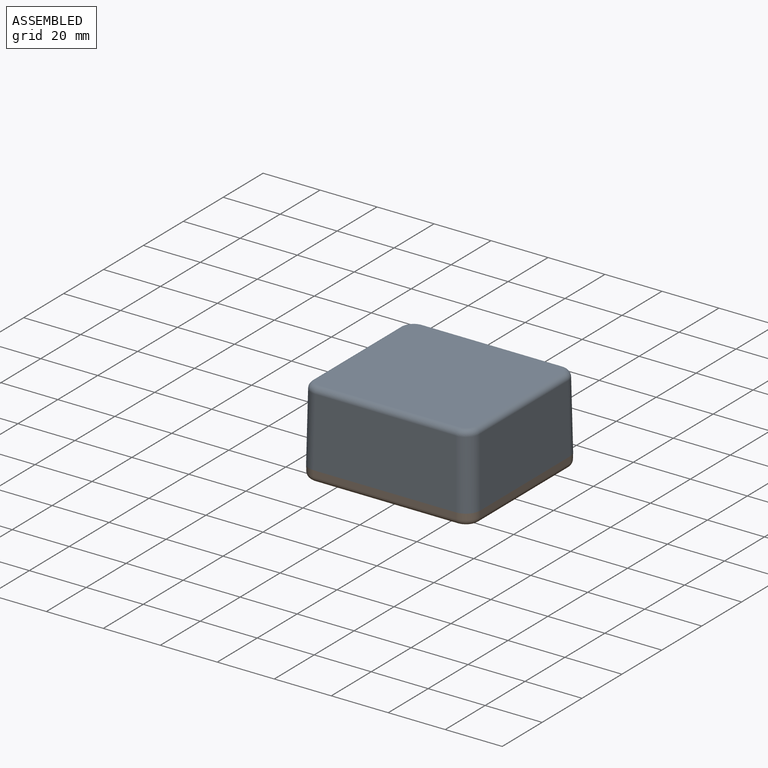
[diagram: assembled view]
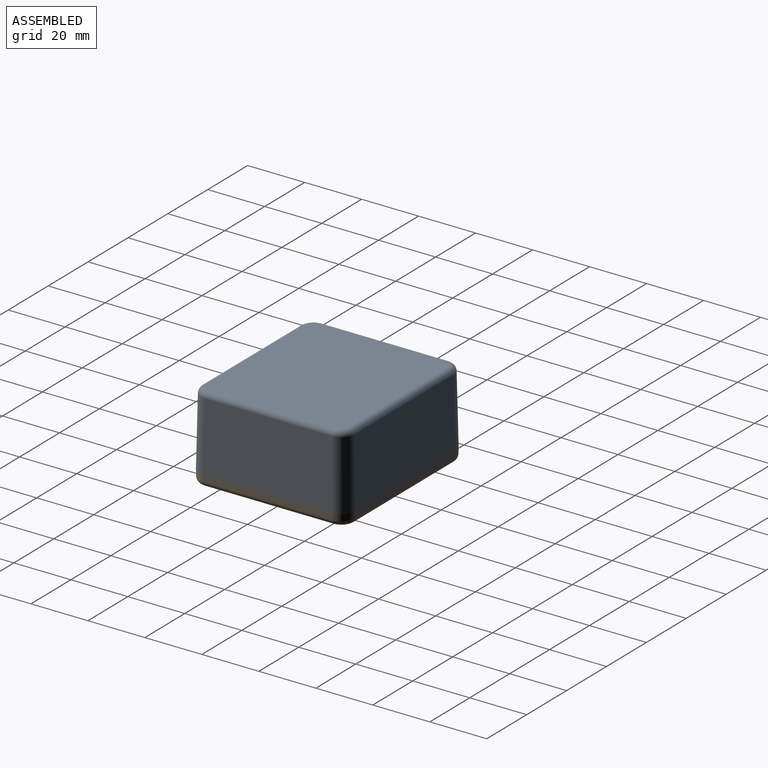
[diagram: assembled view, second angle]
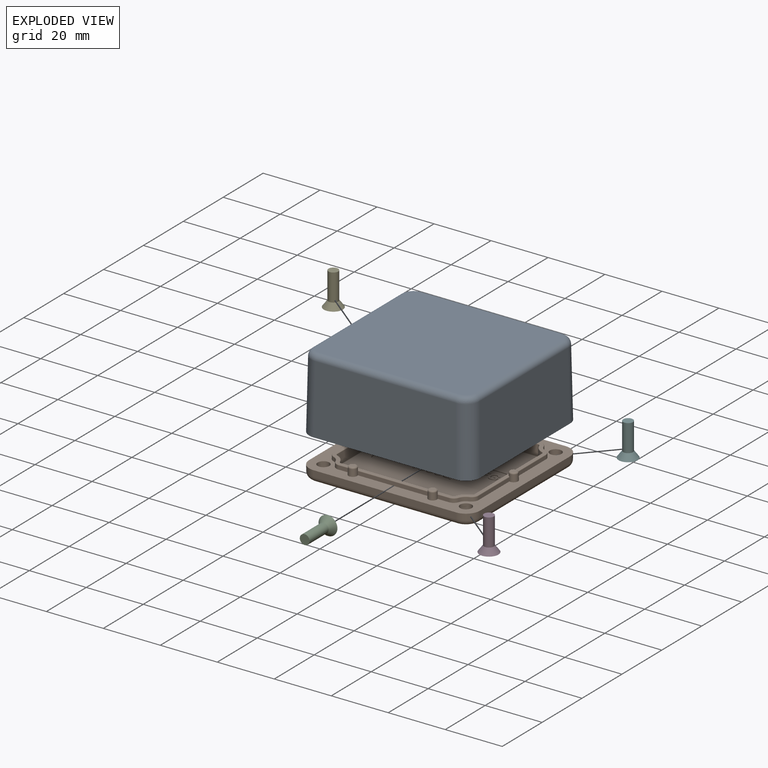
[diagram: exploded view]
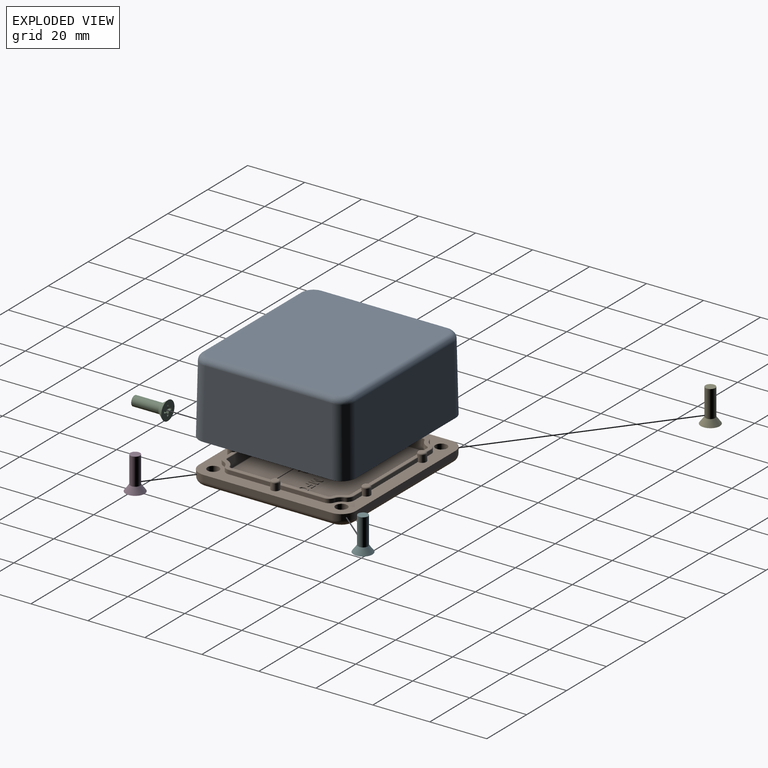
[diagram: exploded view, second angle]
FCSTD DOCUMENT  (FreeCAD 1.0R)
Label: Housing-Box-with-Parts
License: All rights reserved
LicenseURL: https://en.wikipedia.org/wiki/All_rights_reserved
objects: PartDesign::Body×5, Part::Feature×3, App::Link×3, PartDesign::FeatureBase×3, App::LinkGroup×1, Part::Refine×1
note: 15 computed .brp shape members not serialized (recipe doc carries the construction recipe); baked Part::Feature solids carry a one-line shape summary decoded from their .brp

FEATURE [Part::Feature] Solid  label="1550Q BOX"
  shape: bbox 60 x 55 x 26.04 mm, 345 faces (baked)
FEATURE [Part::Feature] Solid001  label="1550Q LID"
  Placement = pos=(0,0,1.3e-15) rot=(0,0,1;3.14159rad)
  shape: bbox 60 x 55 x 7.002 mm, 416 faces (baked)
FEATURE [Part::Feature] Solid002  label="SC1550 (screw M3.5-0.6X 12mm FH)"
  Placement = pos=(-25,-22.5,-1.7) rot=(-0.214247,-0.690687,0.690687;2.71948rad)
  shape: bbox 6.634 x 6.634 x 11.69 mm, 25 faces (baked)
FEATURE [App::Link] Link  label="SC1550 (screw M3.5-0.6X 12mm FH)001"
  LinkPlacement = pos=(25,-22.5,-1.7) rot=(-0.156786,0.698362,-0.698362;2.83055rad)
  LinkedObject = -> Solid002
  Placement = pos=(25,-22.5,-1.7) rot=(-0.156786,0.698362,-0.698362;2.83055rad)
FEATURE [App::Link] Link001  label="SC1550 (screw M3.5-0.6X 12mm FH)002"
  LinkPlacement = pos=(-25,22.5,-1.7) rot=(-0.934124,-0.2524,0.2524;1.63889rad)
  LinkedObject = -> Solid002
  Placement = pos=(-25,22.5,-1.7) rot=(-0.934124,-0.2524,0.2524;1.63889rad)
FEATURE [App::Link] Link002  label="SC1550 (screw M3.5-0.6X 12mm FH)003"
  LinkPlacement = pos=(25,22.5,-1.7) rot=(-0.851261,-0.371049,0.371049;1.73114rad)
  LinkedObject = -> Solid002
  Placement = pos=(25,22.5,-1.7) rot=(-0.851261,-0.371049,0.371049;1.73114rad)
FEATURE [App::LinkGroup] LinkGroup  label="1550Q"
  ElementList = -> [Solid,Solid001,Solid002,Link,Link001,Link002]
  LinkMode = 0
FEATURE [Part::Refine] Solid003  label="1550Q BOX001"
  Source = -> Solid
FEATURE [PartDesign::FeatureBase] BaseFeature
  BaseFeature = -> Solid003
  Suppressed = false
FEATURE [PartDesign::Body] Body  label="Box"
  AllowCompound = false
  BaseFeature = -> Solid003
  Group = -> [BaseFeature]
  Origin = -> Origin
  Tip = -> BaseFeature
FEATURE [PartDesign::FeatureBase] BaseFeature001
  BaseFeature = -> Solid001
  Suppressed = false
FEATURE [PartDesign::Body] Body001  label="Lid"
  AllowCompound = false
  BaseFeature = -> Solid001
  Group = -> [BaseFeature001]
  Origin = -> Origin001
  Tip = -> BaseFeature001
FEATURE [PartDesign::FeatureBase] BaseFeature002
  BaseFeature = -> Solid002
  Suppressed = false
FEATURE [PartDesign::Body] Body002  label="Screw1-M3.5x12"
  AllowCompound = false
  BaseFeature = -> Solid002
  Group = -> [BaseFeature002]
  Origin = -> Origin002
  Tip = -> BaseFeature002
FEATURE [PartDesign::Body] Body003  label="Screw2-M3.5x12"
  AllowCompound = false
  Origin = -> Origin003
FEATURE [PartDesign::Body] Body004  label="Screw3-M3.5x12"
  AllowCompound = false
  Origin = -> Origin004
